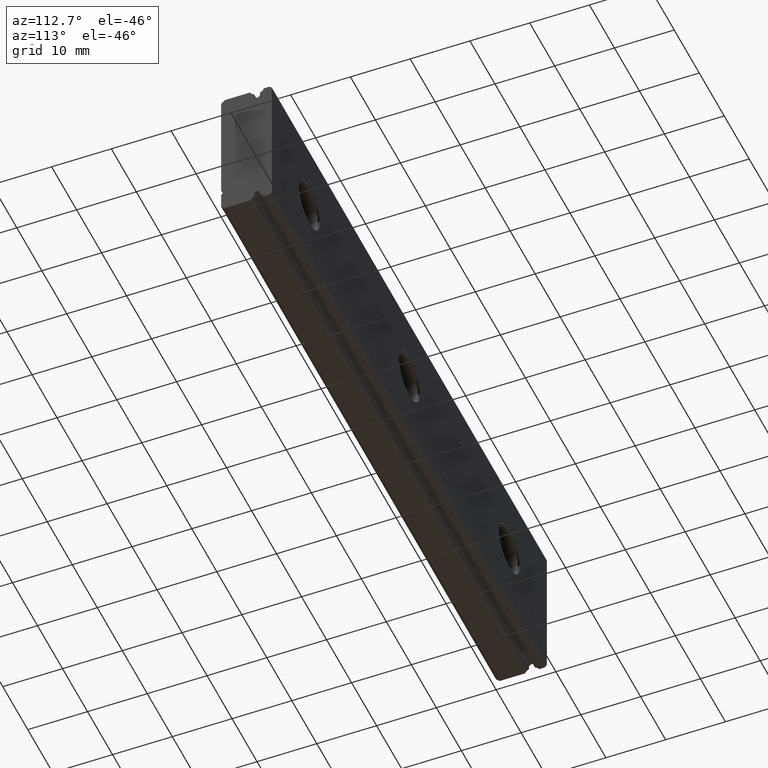
[diagram: clean part render]
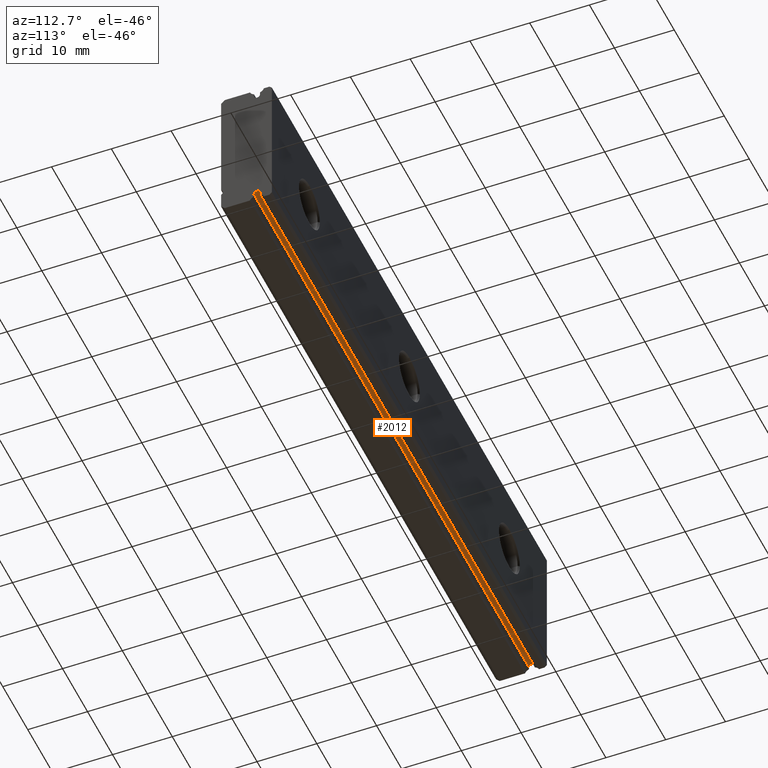
[diagram: same view with one face highlighted and labeled with its STEP entity id]
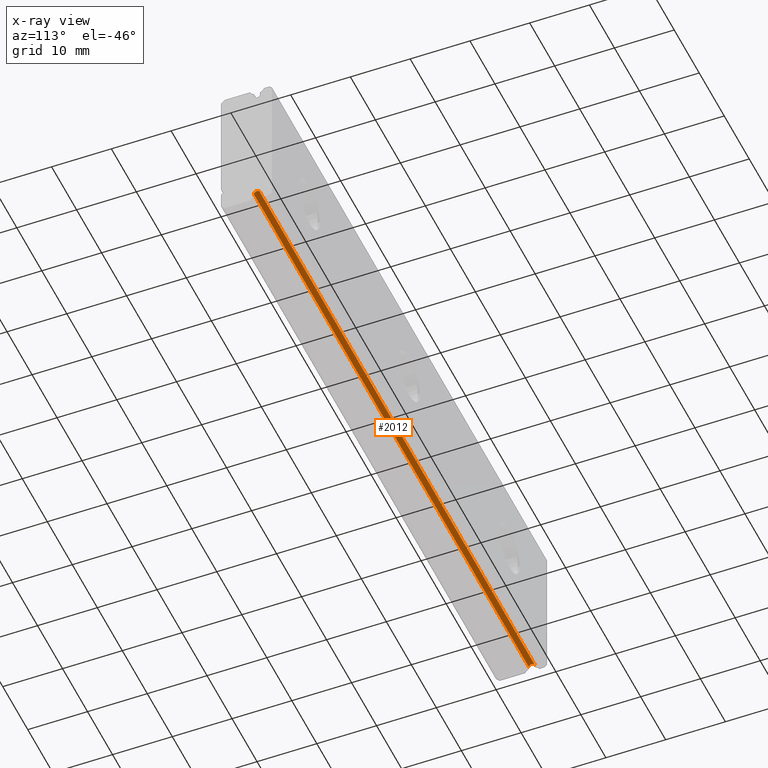
[diagram: x-ray of the same camera — body ghosted, the highlighted face saturated]
A machine part, auxiliary view. The second image highlights one B-rep face of the part: STEP entity #2012.
The next image is the same camera in x-ray: the body ghosted, the highlighted face saturated — about 0% of this face is hidden behind the body in this view.
In plain terms, the highlighted cylindrical surface (edge-blend (fillet) strip) has radius 0.5 mm, axis along (1, 0, 0).
Its self-contained STEP definition (entity closure, byte-faithful):
#204 = VERTEX_POINT ( 'NONE', #866 ) ;
#263 = VERTEX_POINT ( 'NONE', #944 ) ;
#266 = EDGE_CURVE ( 'NONE', #204, #263, #997, .T. ) ;
#300 = VERTEX_POINT ( 'NONE', #1010 ) ;
#324 = EDGE_CURVE ( 'NONE', #325, #300, #1090, .T. ) ;
#325 = VERTEX_POINT ( 'NONE', #1085 ) ;
#866 = CARTESIAN_POINT ( 'NONE',  ( -110.0000000000000000, 6.499999999999997300, -10.90000000000000000 ) ) ;
#942 = CARTESIAN_POINT ( 'NONE',  ( -110.0000000000000000, 5.999999999999997300, -10.90000000000000000 ) ) ;
#944 = CARTESIAN_POINT ( 'NONE',  ( -110.0000000000000000, 5.499999999999998200, -10.90000000000000000 ) ) ;
#994 = DIRECTION ( 'NONE',  ( 0.0000000000000000000, 0.0000000000000000000, 1.000000000000000000 ) ) ;
#995 = DIRECTION ( 'NONE',  ( 1.000000000000000000, 0.0000000000000000000, 0.0000000000000000000 ) ) ;
#996 = AXIS2_PLACEMENT_3D ( 'NONE', #942, #995, #994 ) ;
#997 = CIRCLE ( 'NONE', #996, 0.5000000000000004400 ) ;
#1010 = CARTESIAN_POINT ( 'NONE',  ( 0.0000000000000000000, 5.499999999999998200, -10.90000000000000000 ) ) ;
#1085 = CARTESIAN_POINT ( 'NONE',  ( 0.0000000000000000000, 6.499999999999997300, -10.90000000000000000 ) ) ;
#1086 = DIRECTION ( 'NONE',  ( 0.0000000000000000000, 0.0000000000000000000, 1.000000000000000000 ) ) ;
#1087 = DIRECTION ( 'NONE',  ( 1.000000000000000000, 0.0000000000000000000, 0.0000000000000000000 ) ) ;
#1088 = CARTESIAN_POINT ( 'NONE',  ( 0.0000000000000000000, 5.999999999999997300, -10.90000000000000000 ) ) ;
#1089 = AXIS2_PLACEMENT_3D ( 'NONE', #1088, #1087, #1086 ) ;
#1090 = CIRCLE ( 'NONE', #1089, 0.5000000000000004400 ) ;
#1633 = LINE ( 'NONE', #1693, #1692 ) ;
#1639 = DIRECTION ( 'NONE',  ( 1.000000000000000000, 0.0000000000000000000, 0.0000000000000000000 ) ) ;
#1640 = VECTOR ( 'NONE', #1639, 1000.000000000000000 ) ;
#1641 = CARTESIAN_POINT ( 'NONE',  ( -110.0000000000000000, 5.499999999999998200, -10.90000000000000000 ) ) ;
#1642 = LINE ( 'NONE', #1641, #1640 ) ;
#1684 = DIRECTION ( 'NONE',  ( 0.0000000000000000000, 0.0000000000000000000, -1.000000000000000000 ) ) ;
#1685 = DIRECTION ( 'NONE',  ( 1.000000000000000000, 0.0000000000000000000, 0.0000000000000000000 ) ) ;
#1686 = CARTESIAN_POINT ( 'NONE',  ( -110.0000000000000000, 5.999999999999997300, -10.90000000000000000 ) ) ;
#1687 = AXIS2_PLACEMENT_3D ( 'NONE', #1686, #1685, #1684 ) ;
#1688 = CYLINDRICAL_SURFACE ( 'NONE', #1687, 0.5000000000000004400 ) ;
#1690 = FACE_OUTER_BOUND ( 'NONE', #2015, .T. ) ;
#1691 = DIRECTION ( 'NONE',  ( 1.000000000000000000, 0.0000000000000000000, 0.0000000000000000000 ) ) ;
#1692 = VECTOR ( 'NONE', #1691, 1000.000000000000000 ) ;
#1693 = CARTESIAN_POINT ( 'NONE',  ( -110.0000000000000000, 6.499999999999997300, -10.90000000000000000 ) ) ;
#2000 = ORIENTED_EDGE ( 'NONE', *, *, #266, .F. ) ;
#2001 = ORIENTED_EDGE ( 'NONE', *, *, #2011, .T. ) ;
#2003 = ORIENTED_EDGE ( 'NONE', *, *, #324, .T. ) ;
#2004 = ORIENTED_EDGE ( 'NONE', *, *, #2005, .F. ) ;
#2005 = EDGE_CURVE ( 'NONE', #263, #300, #1642, .T. ) ;
#2011 = EDGE_CURVE ( 'NONE', #204, #325, #1633, .T. ) ;
#2012 = ADVANCED_FACE ( 'NONE', ( #1690 ), #1688, .F. ) ;
#2015 = EDGE_LOOP ( 'NONE', ( #2003, #2004, #2000, #2001 ) ) ;